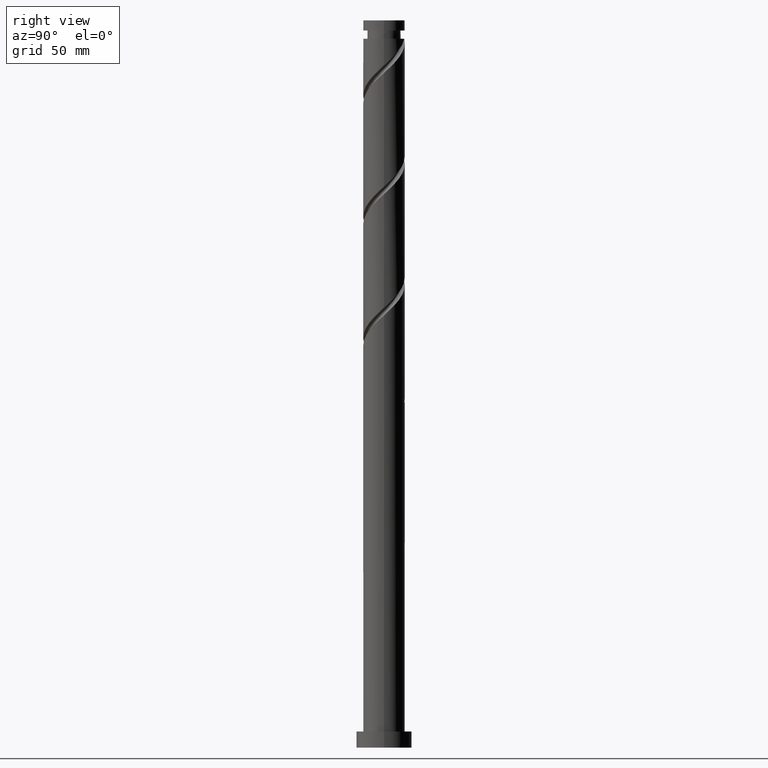
[diagram: clean part render]
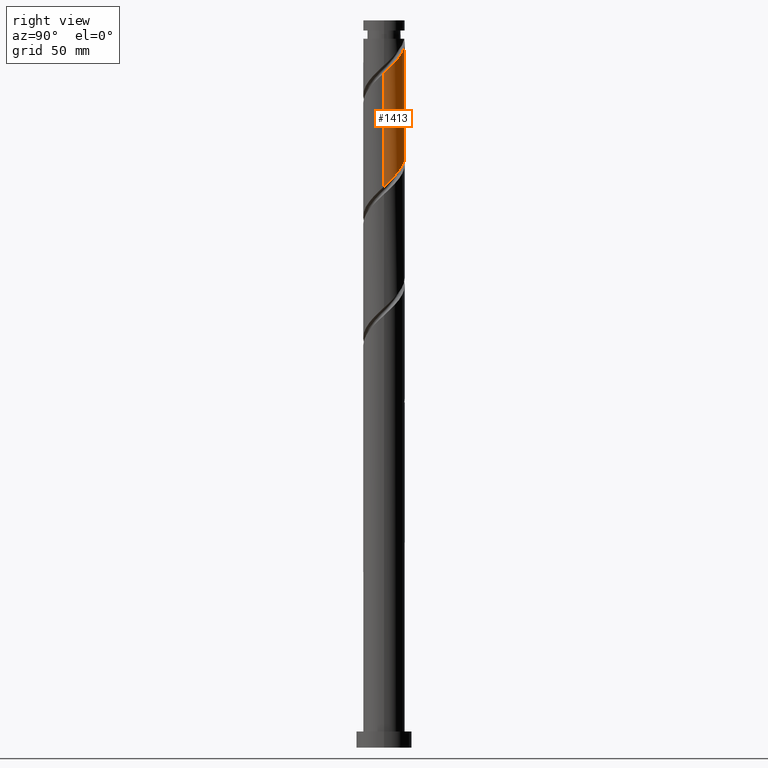
[diagram: same view with one face highlighted and labeled with its STEP entity id]
A machine part, right view. The second image highlights one B-rep face of the part: STEP entity #1413.
In plain terms, the highlighted cylindrical surface (edge-blend (fillet) strip) has radius 9 mm, axis along (-0, -0, -1).
Its self-contained STEP definition (entity closure, byte-faithful):
#50 = CARTESIAN_POINT ( 'NONE',  ( -4.098937547011781923, 8.012409811392387837, 260.1426627942442451 ) ) ;
#73 = ORIENTED_EDGE ( 'NONE', *, *, #1898, .F. ) ;
#88 = CARTESIAN_POINT ( 'NONE',  ( 6.248274648048925961, 6.556475762541448482, 249.8301627942442167 ) ) ;
#103 = CARTESIAN_POINT ( 'NONE',  ( -1.790977386791916981, 8.819999999999996732, 307.0176627942443588 ) ) ;
#126 = CARTESIAN_POINT ( 'NONE',  ( 8.997394146247255975, 0.2165607930247861745, 243.2676627942443019 ) ) ;
#152 = DIRECTION ( 'NONE',  ( -1.000000000000000000, 0.000000000000000000, 0.000000000000000000 ) ) ;
#156 = CARTESIAN_POINT ( 'NONE',  ( -7.169469449643061765, 5.440469447633611288, 263.8926627942443588 ) ) ;
#218 = CIRCLE ( 'NONE', #1723, 8.999999999999975131 ) ;
#220 = ORIENTED_EDGE ( 'NONE', *, *, #973, .F. ) ;
#248 = CARTESIAN_POINT ( 'NONE',  ( 9.000000000000007105, -1.358245390458892985E-15, 292.2181457163381992 ) ) ;
#251 = CARTESIAN_POINT ( 'NONE',  ( 7.550570467503619376, 5.001719316145853966, 247.9551627942442735 ) ) ;
#295 = DIRECTION ( 'NONE',  ( -0.000000000000000000, -0.000000000000000000, -1.000000000000000000 ) ) ;
#300 = CARTESIAN_POINT ( 'NONE',  ( -8.618205312535531348, 2.784752716710898746, 266.7051627942443019 ) ) ;
#320 = EDGE_CURVE ( 'NONE', #826, #658, #604, .T. ) ;
#330 = CARTESIAN_POINT ( 'NONE',  ( 8.820000000000009166, 1.790977386791919201, 293.8926627942441883 ) ) ;
#342 = CARTESIAN_POINT ( 'NONE',  ( 5.001719316145865513, 7.550570467503626482, 300.4551627942441314 ) ) ;
#350 = CARTESIAN_POINT ( 'NONE',  ( -5.001719316145856631, 7.550570467503619376, 261.0801627942442451 ) ) ;
#353 = CARTESIAN_POINT ( 'NONE',  ( 1.230323642922521499, 8.972993605030067599, 304.2051627942441883 ) ) ;
#356 = CYLINDRICAL_SURFACE ( 'NONE', #1324, 9.000000000000000000 ) ;
#378 = DIRECTION ( 'NONE',  ( -1.000000000000000000, 0.000000000000000000, 0.000000000000000000 ) ) ;
#403 = CARTESIAN_POINT ( 'NONE',  ( 8.999999999999994671, -4.701618659280815540E-15, 243.0671798721502910 ) ) ;
#407 = EDGE_CURVE ( 'NONE', #1684, #475, #218, .T. ) ;
#475 = VERTEX_POINT ( 'NONE', #904 ) ;
#488 = CARTESIAN_POINT ( 'NONE',  ( -8.999999999999975131, 0.000000000000000000, 307.0176627942442451 ) ) ;
#497 = CARTESIAN_POINT ( 'NONE',  ( -0.2165607930247878399, 8.997394146247255975, 256.3926627942443019 ) ) ;
#506 = EDGE_LOOP ( 'NONE', ( #220, #1253, #73, #1157, #812 ) ) ;
#508 = CARTESIAN_POINT ( 'NONE',  ( 5.779097539343664103, 6.899422557776280662, 299.5176627942441883 ) ) ;
#510 = CARTESIAN_POINT ( 'NONE',  ( -8.999999999999998224, 2.074682519492169570E-15, 269.3171798721503478 ) ) ;
#562 = VECTOR ( 'NONE', #623, 1000.000000000000000 ) ;
#588 = CARTESIAN_POINT ( 'NONE',  ( -8.999999999999998224, 0.9045340337332937741, 268.4789087931866902 ) ) ;
#604 = LINE ( 'NONE', #1211, #562 ) ;
#623 = DIRECTION ( 'NONE',  ( -0.000000000000000000, -0.000000000000000000, -1.000000000000000000 ) ) ;
#627 = CARTESIAN_POINT ( 'NONE',  ( -8.999999999999998224, 2.074682519492169570E-15, 269.3171798721503478 ) ) ;
#637 = CARTESIAN_POINT ( 'NONE',  ( -3.196155777877709880, 8.474249155281153634, 259.2051627942442451 ) ) ;
#651 = CARTESIAN_POINT ( 'NONE',  ( 9.000000000000008882, 0.9045340337332924419, 293.0564167953017432 ) ) ;
#658 = VERTEX_POINT ( 'NONE', #403 ) ;
#750 = EDGE_CURVE ( 'NONE', #1684, #1453, #1880, .T. ) ;
#767 = CARTESIAN_POINT ( 'NONE',  ( 9.000000000000007105, -1.358245390458892985E-15, 292.2181457163381992 ) ) ;
#790 = CARTESIAN_POINT ( 'NONE',  ( -2.213239710400112692, 8.723621380155604399, 258.2676627942442451 ) ) ;
#812 = ORIENTED_EDGE ( 'NONE', *, *, #407, .T. ) ;
#826 = VERTEX_POINT ( 'NONE', #248 ) ;
#829 = CARTESIAN_POINT ( 'NONE',  ( 4.632664247218294840, 7.782463136744671495, 251.7051627942442735 ) ) ;
#862 = CARTESIAN_POINT ( 'NONE',  ( 8.723621380155604399, 2.213239710400110472, 245.1426627942442451 ) ) ;
#898 = CARTESIAN_POINT ( 'NONE',  ( -8.200334224640103642, 3.708708481964597237, 265.7676627942443019 ) ) ;
#904 = CARTESIAN_POINT ( 'NONE',  ( -1.790977386791916981, 8.819999999999996732, 307.0176627942443588 ) ) ;
#935 = CARTESIAN_POINT ( 'NONE',  ( 4.098937547011791693, 8.012409811392394943, 301.3926627942443019 ) ) ;
#944 = CARTESIAN_POINT ( 'NONE',  ( -1.230323642922516170, 8.972993605030055164, 257.3301627942443019 ) ) ;
#973 = EDGE_CURVE ( 'NONE', #826, #475, #1911, .T. ) ;
#977 = CARTESIAN_POINT ( 'NONE',  ( 8.999999999999994671, -4.701618659280815540E-15, 243.0671798721502910 ) ) ;
#1039 = CARTESIAN_POINT ( 'NONE',  ( 0.000000000000000000, 0.000000000000000000, 307.0176627942442451 ) ) ;
#1071 = CARTESIAN_POINT ( 'NONE',  ( 8.200334224640116076, 3.708708481964598125, 295.7676627942442451 ) ) ;
#1092 = CARTESIAN_POINT ( 'NONE',  ( 2.784752716710900078, 8.618205312535531348, 253.5801627942442167 ) ) ;
#1093 = CARTESIAN_POINT ( 'NONE',  ( 7.169469449643073311, 5.440469447633614841, 297.6426627942441883 ) ) ;
#1101 = CARTESIAN_POINT ( 'NONE',  ( 0.2165607930247918089, 8.997394146247270186, 305.1426627942442451 ) ) ;
#1157 = ORIENTED_EDGE ( 'NONE', *, *, #750, .F. ) ;
#1181 = CARTESIAN_POINT ( 'NONE',  ( -8.819999999999996732, 1.790977386791920090, 267.6426627942442451 ) ) ;
#1211 = CARTESIAN_POINT ( 'NONE',  ( 9.000000000000000000, 1.102182119232617714E-15, 315.0000000000000000 ) ) ;
#1236 = CARTESIAN_POINT ( 'NONE',  ( -5.779097539343653445, 6.899422557776271780, 262.0176627942442451 ) ) ;
#1246 = CARTESIAN_POINT ( 'NONE',  ( 2.213239710400118909, 8.723621380155615057, 303.2676627942442451 ) ) ;
#1253 = ORIENTED_EDGE ( 'NONE', *, *, #320, .T. ) ;
#1324 = AXIS2_PLACEMENT_3D ( 'NONE', #1842, #1680, #378 ) ;
#1362 = CARTESIAN_POINT ( 'NONE',  ( 8.618205312535543783, 2.784752716710899190, 294.8301627942440746 ) ) ;
#1384 = CARTESIAN_POINT ( 'NONE',  ( 3.708708481964598569, 8.200334224640103642, 252.6426627942443019 ) ) ;
#1413 = ADVANCED_FACE ( 'NONE', ( #1855 ), #356, .T. ) ;
#1422 = CARTESIAN_POINT ( 'NONE',  ( 5.440469447633613065, 7.169469449643059988, 250.7676627942442167 ) ) ;
#1445 = DIRECTION ( 'NONE',  ( -0.000000000000000000, -0.000000000000000000, -1.000000000000000000 ) ) ;
#1448 = CARTESIAN_POINT ( 'NONE',  ( 8.999999999999996447, 0.1082960744974968831, 243.1675425603753808 ) ) ;
#1453 = VERTEX_POINT ( 'NONE', #510 ) ;
#1497 = CARTESIAN_POINT ( 'NONE',  ( -7.782463136744675047, 4.632664247218293063, 264.8301627942442451 ) ) ;
#1521 = CARTESIAN_POINT ( 'NONE',  ( 7.782463136744686594, 4.632664247218295728, 296.7051627942443019 ) ) ;
#1539 = CARTESIAN_POINT ( 'NONE',  ( 0.7972020568729405454, 9.021794687464462115, 255.4551627942442451 ) ) ;
#1604 = CARTESIAN_POINT ( 'NONE',  ( 6.899422557776271780, 5.779097539343652556, 248.8926627942443588 ) ) ;
#1669 = CARTESIAN_POINT ( 'NONE',  ( 6.556475762541460917, 6.248274648048930402, 298.5801627942441314 ) ) ;
#1676 = CARTESIAN_POINT ( 'NONE',  ( -6.556475762541449370, 6.248274648048924185, 262.9551627942442451 ) ) ;
#1678 = CARTESIAN_POINT ( 'NONE',  ( 3.196155777877715654, 8.474249155281162516, 302.3301627942443019 ) ) ;
#1680 = DIRECTION ( 'NONE',  ( -0.000000000000000000, -0.000000000000000000, -1.000000000000000000 ) ) ;
#1684 = VERTEX_POINT ( 'NONE', #488 ) ;
#1685 = CARTESIAN_POINT ( 'NONE',  ( -0.7972020568729127898, 9.021794687464470996, 306.0801627942440177 ) ) ;
#1692 = VECTOR ( 'NONE', #1445, 1000.000000000000000 ) ;
#1720 = CARTESIAN_POINT ( 'NONE',  ( -9.000000000000000000, 0.000000000000000000, 315.0000000000000000 ) ) ;
#1723 = AXIS2_PLACEMENT_3D ( 'NONE', #1039, #295, #152 ) ;
#1733 = CARTESIAN_POINT ( 'NONE',  ( 8.012409811392387837, 4.098937547011781035, 247.0176627942442735 ) ) ;
#1751 = CARTESIAN_POINT ( 'NONE',  ( 8.972993605030055164, 1.230323642922514615, 244.2051627942442451 ) ) ;
#1759 =( BOUNDED_CURVE ( )  B_SPLINE_CURVE ( 2, ( #627, #588, #1181, #300, #898, #1497, #156, #1676, #1236, #350, #50, #637, #790, #944, #497, #1539, #1823, #1092, #1384, #829, #1422, #88, #1604, #251, #1733, #1909, #862, #1751, #126, #1448, #977 ),
 .UNSPECIFIED., .F., .T. ) 
 B_SPLINE_CURVE_WITH_KNOTS ( ( 3, 2, 2, 2, 2, 2, 2, 2, 2, 2, 2, 2, 2, 2, 2, 3 ),
 ( 0.4295303401299220281, 0.4375000000000000000, 0.4464285714285714524, 0.4553571428571428492, 0.4642857142857143016, 0.4732142857142856984, 0.4821428571428571508, 0.4910714285714285476, 0.5000000000000000000, 0.5089285714285713969, 0.5178571428571429047, 0.5267857142857143016, 0.5357142857142856984, 0.5446428571428570953, 0.5535714285714286031, 0.5545303401299221946 ),
 .UNSPECIFIED. ) 
 CURVE ( )  GEOMETRIC_REPRESENTATION_ITEM ( )  RATIONAL_B_SPLINE_CURVE ( ( 0.9079949616361887577, 0.9039886423360519174, 0.9090909090909186085, 0.9033747362665937031, 0.9090909090909186085, 0.9033747362665937031, 0.9090909090909186085, 0.9033747362665937031, 0.9090909090909186085, 0.9033747362665937031, 0.9090909090909186085, 0.9033747362665937031, 0.9090909090909186085, 0.9033747362665937031, 0.9090909090909186085, 0.9033747362665937031, 0.9090909090909186085, 0.9033747362665937031, 0.9090909090909186085, 0.9033747362665937031, 0.9090909090909186085, 0.9033747362665937031, 0.9090909090909186085, 0.9033747362665937031, 0.9090909090909186085, 0.9033747362665937031, 0.9090909090909186085, 0.9033747362665937031, 0.9090909090909186085, 0.9084770030214603942, 0.9079949616361886466 ) ) 
 REPRESENTATION_ITEM ( '' )  );
#1823 = CARTESIAN_POINT ( 'NONE',  ( 1.790977386791921644, 8.819999999999996732, 254.5176627942442451 ) ) ;
#1842 = CARTESIAN_POINT ( 'NONE',  ( 0.000000000000000000, 0.000000000000000000, 315.0000000000000000 ) ) ;
#1855 = FACE_OUTER_BOUND ( 'NONE', #506, .T. ) ;
#1880 = LINE ( 'NONE', #1720, #1692 ) ;
#1898 = EDGE_CURVE ( 'NONE', #1453, #658, #1759, .T. ) ;
#1909 = CARTESIAN_POINT ( 'NONE',  ( 8.474249155281153634, 3.196155777877707216, 246.0801627942442735 ) ) ;
#1911 =( BOUNDED_CURVE ( )  B_SPLINE_CURVE ( 2, ( #767, #651, #330, #1362, #1071, #1521, #1093, #1669, #508, #342, #935, #1678, #1246, #353, #1101, #1685, #103 ),
 .UNSPECIFIED., .F., .T. ) 
 B_SPLINE_CURVE_WITH_KNOTS ( ( 3, 2, 2, 2, 2, 2, 2, 2, 3 ),
 ( 0.6795303401299220836, 0.6875000000000000000, 0.6964285714285713969, 0.7053571428571426827, 0.7142857142857141906, 0.7232142857142855874, 0.7321428571428569843, 0.7410714285714283811, 0.7499999999999997780 ),
 .UNSPECIFIED. ) 
 CURVE ( )  GEOMETRIC_REPRESENTATION_ITEM ( )  RATIONAL_B_SPLINE_CURVE ( ( 0.9079949616361950859, 0.9039886423360582457, 0.9090909090909249368, 0.9033747362665999203, 0.9090909090909249368, 0.9033747362665999203, 0.9090909090909249368, 0.9033747362665999203, 0.9090909090909249368, 0.9033747362665999203, 0.9090909090909249368, 0.9033747362665999203, 0.9090909090909249368, 0.9033747362665999203, 0.9090909090909249368, 0.9033747362666001424, 0.9090909090909247148 ) ) 
 REPRESENTATION_ITEM ( '' )  );